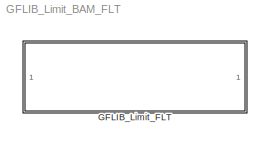
MODEL GFLIB_Limit_BAM_FLT
KIND model
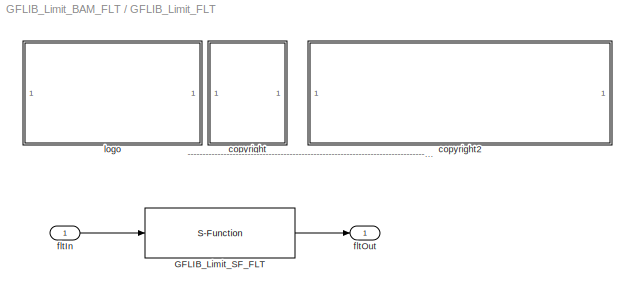
BLOCK [SubSystem] GFLIB_Limit_FLT
  Ports = [1, 1]
  RequestExecContextInheritance = off
  SID = 1
BLOCK [S-Function] GFLIB_Limit_FLT/GFLIB_Limit_SF_FLT
  EnableBusSupport = off
  FunctionName = GFLIB_Limit_SF_FLT
  Parameters = fltUpperLimit,fltLowerLim
  Ports = [1, 1]
  SID = 3
BLOCK [SubSystem] GFLIB_Limit_FLT/<copyright redacted>
  Ports = []
  RequestExecContextInheritance = off
  SID = 4
BLOCK [SubSystem] GFLIB_Limit_FLT/copyright2
  Ports = []
  RequestExecContextInheritance = off
  SID = 5
BLOCK [Inport] GFLIB_Limit_FLT/fltIn
  IconDisplay = Port number
  SID = 2
BLOCK [Outport] GFLIB_Limit_FLT/fltOut
  IconDisplay = Port number
  SID = 7
BLOCK [SubSystem] GFLIB_Limit_FLT/logo
  Ports = []
  RequestExecContextInheritance = off
  SID = 6
ANNOTATION GFLIB_Limit_FLT: ---------------------------------------------------------------------------------------------------------------------------------------------------------------------------------------------------
LINE GFLIB_Limit_FLT/GFLIB_Limit_SF_FLT:1 -> GFLIB_Limit_FLT/fltOut:1
LINE GFLIB_Limit_FLT/fltIn:1 -> GFLIB_Limit_FLT/GFLIB_Limit_SF_FLT:1
